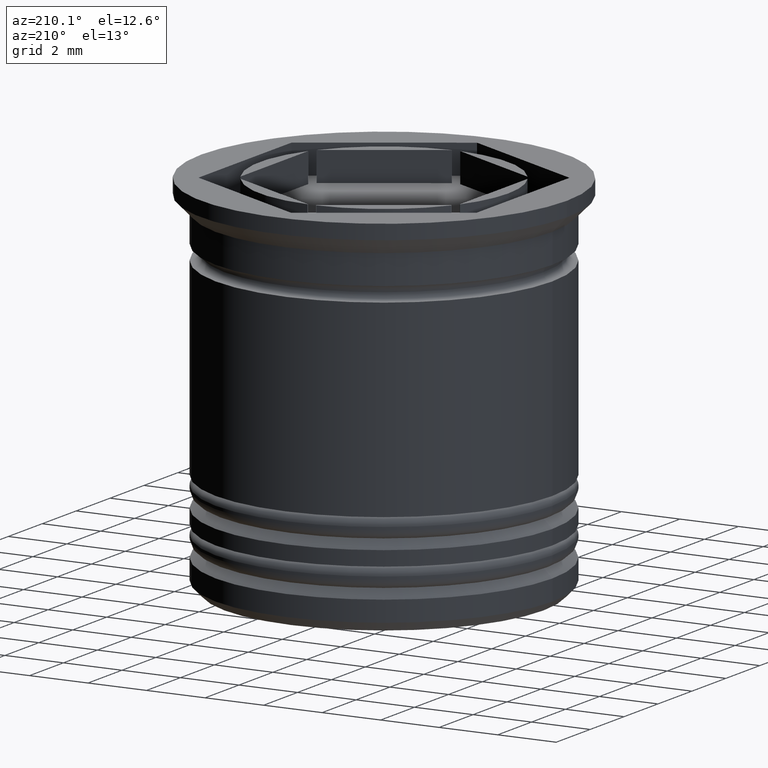
[diagram: clean part render]
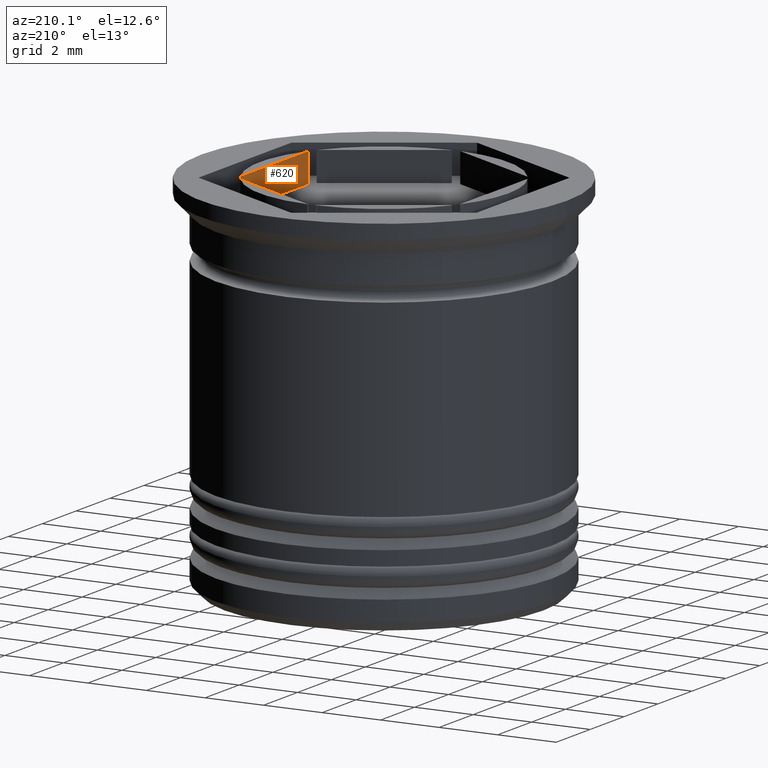
[diagram: same view with one face highlighted and labeled with its STEP entity id]
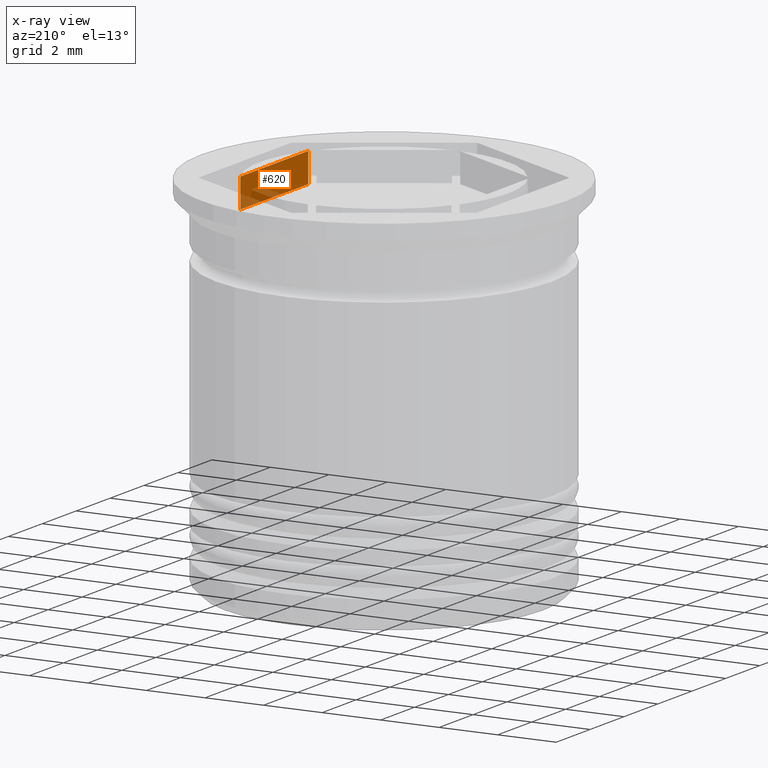
[diagram: x-ray of the same camera — body ghosted, the highlighted face saturated]
A machine part, auxiliary view. The second image highlights one B-rep face of the part: STEP entity #620.
The next image is the same camera in x-ray: the body ghosted, the highlighted face saturated — about 20% of this face is hidden behind the body in this view.
In plain terms, the highlighted planar face has unit normal (1, -0, 0).
Its self-contained STEP definition (entity closure, byte-faithful):
#87 = CARTESIAN_POINT ( 'NONE',  ( 3.749999999999999556, -2.000000000000001776, 12.02081528017130729 ) ) ;
#90 = VECTOR ( 'NONE', #1364, 1000.000000000000000 ) ;
#168 = FACE_OUTER_BOUND ( 'NONE', #709, .T. ) ;
#228 = LINE ( 'NONE', #853, #529 ) ;
#249 = VECTOR ( 'NONE', #1014, 1000.000000000000000 ) ;
#251 = DIRECTION ( 'NONE',  ( -3.004629197474318063E-16, -1.000000000000000000, 0.000000000000000000 ) ) ;
#254 = LINE ( 'NONE', #87, #249 ) ;
#358 = ORIENTED_EDGE ( 'NONE', *, *, #868, .T. ) ;
#449 = CARTESIAN_POINT ( 'NONE',  ( 3.750000000000000444, 1.999999999999999112, 0.000000000000000000 ) ) ;
#483 = VERTEX_POINT ( 'NONE', #498 ) ;
#494 = CARTESIAN_POINT ( 'NONE',  ( 3.750000000000000444, 1.999999999999999112, -1.000000000000000888 ) ) ;
#498 = CARTESIAN_POINT ( 'NONE',  ( 3.749999999999999556, -2.000000000000001776, -1.000000000000000888 ) ) ;
#525 = ORIENTED_EDGE ( 'NONE', *, *, #1671, .F. ) ;
#529 = VECTOR ( 'NONE', #1778, 1000.000000000000000 ) ;
#602 = LINE ( 'NONE', #749, #90 ) ;
#620 = ADVANCED_FACE ( 'NONE', ( #168 ), #764, .F. ) ;
#688 = CARTESIAN_POINT ( 'NONE',  ( 3.749999999999999112, -2.000000000000001776, 0.000000000000000000 ) ) ;
#709 = EDGE_LOOP ( 'NONE', ( #1117, #776, #358, #525 ) ) ;
#710 = LINE ( 'NONE', #1773, #1600 ) ;
#749 = CARTESIAN_POINT ( 'NONE',  ( 3.750000000000000000, -1.126735949052869323E-15, 0.000000000000000000 ) ) ;
#764 = PLANE ( 'NONE',  #1238 ) ;
#776 = ORIENTED_EDGE ( 'NONE', *, *, #1694, .F. ) ;
#853 = CARTESIAN_POINT ( 'NONE',  ( 3.750000000000000444, 1.999999999999999112, 12.02081528017130729 ) ) ;
#868 = EDGE_CURVE ( 'NONE', #1501, #483, #710, .T. ) ;
#880 = DIRECTION ( 'NONE',  ( 1.000000000000000000, -3.004629197474318063E-16, 0.000000000000000000 ) ) ;
#1014 = DIRECTION ( 'NONE',  ( -0.000000000000000000, -0.000000000000000000, -1.000000000000000000 ) ) ;
#1117 = ORIENTED_EDGE ( 'NONE', *, *, #1186, .T. ) ;
#1141 = VERTEX_POINT ( 'NONE', #449 ) ;
#1186 = EDGE_CURVE ( 'NONE', #1613, #1141, #602, .T. ) ;
#1238 = AXIS2_PLACEMENT_3D ( 'NONE', #1372, #880, #1518 ) ;
#1364 = DIRECTION ( 'NONE',  ( 3.004629197474318063E-16, 1.000000000000000000, 0.000000000000000000 ) ) ;
#1372 = CARTESIAN_POINT ( 'NONE',  ( 3.749999999999999112, -2.165063509461097713, -12.45643923738960090 ) ) ;
#1501 = VERTEX_POINT ( 'NONE', #494 ) ;
#1518 = DIRECTION ( 'NONE',  ( 3.004629197474318063E-16, 1.000000000000000000, 0.000000000000000000 ) ) ;
#1600 = VECTOR ( 'NONE', #251, 1000.000000000000000 ) ;
#1613 = VERTEX_POINT ( 'NONE', #688 ) ;
#1671 = EDGE_CURVE ( 'NONE', #1613, #483, #254, .T. ) ;
#1694 = EDGE_CURVE ( 'NONE', #1501, #1141, #228, .T. ) ;
#1773 = CARTESIAN_POINT ( 'NONE',  ( 3.749999999999999112, -2.165063509461097713, -1.000000000000000888 ) ) ;
#1778 = DIRECTION ( 'NONE',  ( 0.000000000000000000, 0.000000000000000000, 1.000000000000000000 ) ) ;